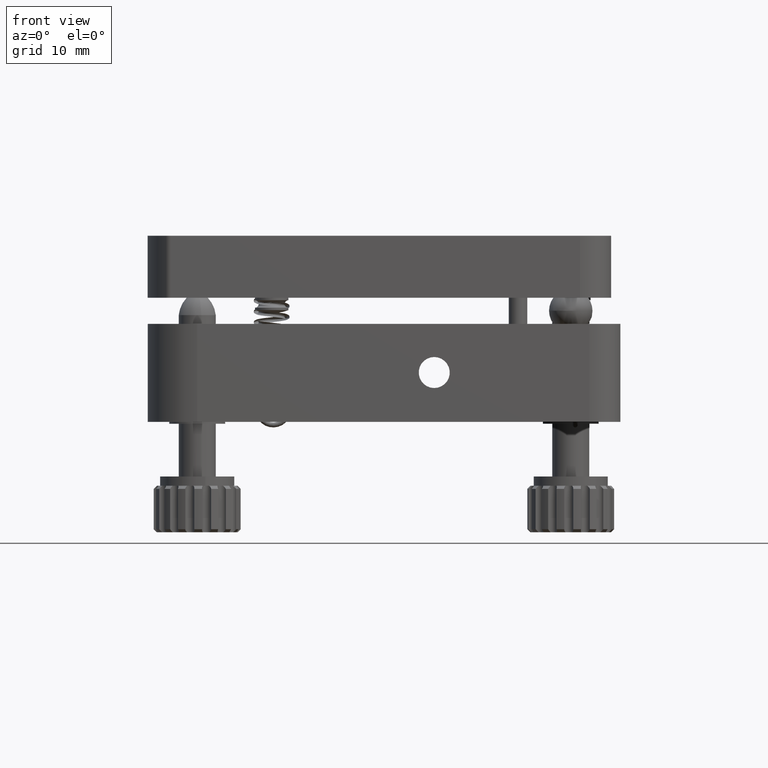
[diagram: clean part render]
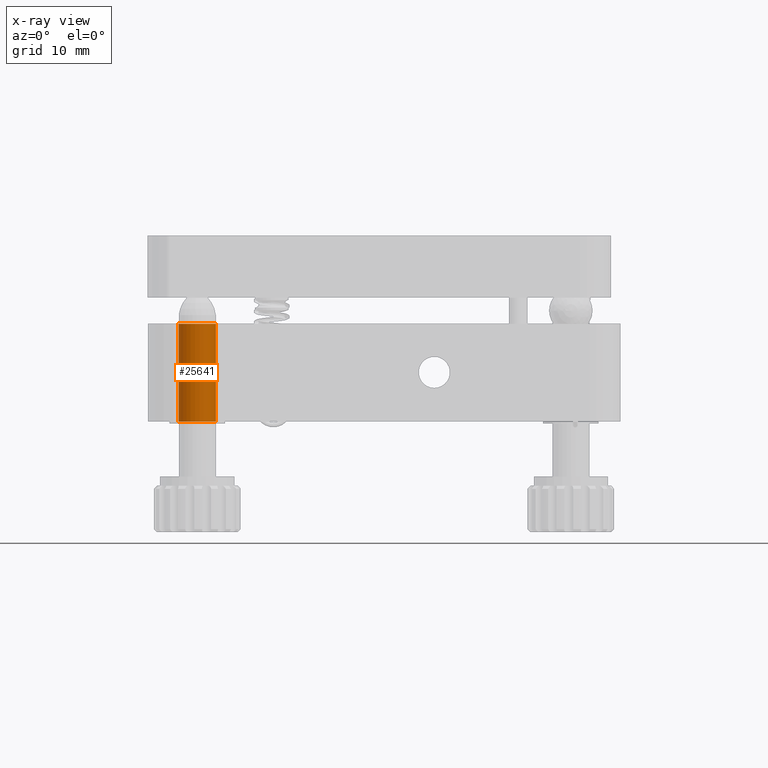
[diagram: x-ray — body ghosted, one internal face saturated and labeled with its STEP entity id]
A machine part, front view, then the same camera in x-ray: the body is ghosted and one INTERNAL B-rep face — a face not visible from any outside direction — is saturated and labeled: STEP entity #25641.
In plain terms, the highlighted cylindrical surface (edge-blend (fillet) strip) has radius 3 mm, axis along (-0, -0, -1).
Its self-contained STEP definition (entity closure, byte-faithful):
#67 = CARTESIAN_POINT ( 'NONE',  ( -42.36030118957224700, -11.04496330042993100, 42.20000000000001700 ) ) ;
#263 = VECTOR ( 'NONE', #20507, 1000.000000000000000 ) ;
#1053 = VERTEX_POINT ( 'NONE', #17217 ) ;
#1343 = ORIENTED_EDGE ( 'NONE', *, *, #3774, .T. ) ;
#2013 = CARTESIAN_POINT ( 'NONE',  ( -45.36030118957226200, -11.04496330042993100, 42.20000000000001700 ) ) ;
#2203 = ORIENTED_EDGE ( 'NONE', *, *, #8290, .T. ) ;
#2803 = LINE ( 'NONE', #31728, #22451 ) ;
#3313 = EDGE_LOOP ( 'NONE', ( #7628, #1343, #2203, #25228 ) ) ;
#3774 = EDGE_CURVE ( 'NONE', #18014, #7208, #2803, .T. ) ;
#4665 = FACE_OUTER_BOUND ( 'NONE', #3313, .T. ) ;
#5565 = AXIS2_PLACEMENT_3D ( 'NONE', #32740, #14064, #31258 ) ;
#7208 = VERTEX_POINT ( 'NONE', #32141 ) ;
#7355 = CARTESIAN_POINT ( 'NONE',  ( -48.36030118957226900, -11.04496330042993100, 42.20000000000001700 ) ) ;
#7628 = ORIENTED_EDGE ( 'NONE', *, *, #17095, .F. ) ;
#8290 = EDGE_CURVE ( 'NONE', #7208, #25393, #26163, .T. ) ;
#11721 = DIRECTION ( 'NONE',  ( -0.0000000000000000000, -0.0000000000000000000, -1.000000000000000000 ) ) ;
#14064 = DIRECTION ( 'NONE',  ( 0.0000000000000000000, 0.0000000000000000000, -1.000000000000000000 ) ) ;
#14072 = DIRECTION ( 'NONE',  ( 0.0000000000000000000, 0.0000000000000000000, -1.000000000000000000 ) ) ;
#14484 = EDGE_CURVE ( 'NONE', #1053, #25393, #20722, .T. ) ;
#17095 = EDGE_CURVE ( 'NONE', #18014, #1053, #34138, .T. ) ;
#17217 = CARTESIAN_POINT ( 'NONE',  ( -48.36030118957226900, -11.04496330042993100, 42.20000000000001700 ) ) ;
#18014 = VERTEX_POINT ( 'NONE', #67 ) ;
#20507 = DIRECTION ( 'NONE',  ( -0.0000000000000000000, -0.0000000000000000000, -1.000000000000000000 ) ) ;
#20676 = DIRECTION ( 'NONE',  ( -0.0000000000000000000, -0.0000000000000000000, -1.000000000000000000 ) ) ;
#20722 = LINE ( 'NONE', #7355, #263 ) ;
#22293 = AXIS2_PLACEMENT_3D ( 'NONE', #30196, #14072, #32860 ) ;
#22451 = VECTOR ( 'NONE', #11721, 1000.000000000000000 ) ;
#22614 = CYLINDRICAL_SURFACE ( 'NONE', #33642, 3.000000000000009800 ) ;
#25228 = ORIENTED_EDGE ( 'NONE', *, *, #14484, .F. ) ;
#25393 = VERTEX_POINT ( 'NONE', #33357 ) ;
#25641 = ADVANCED_FACE ( 'NONE', ( #4665 ), #22614, .F. ) ;
#26163 = CIRCLE ( 'NONE', #5565, 3.000000000000009800 ) ;
#30196 = CARTESIAN_POINT ( 'NONE',  ( -45.36030118957226200, -11.04496330042993100, 42.20000000000001700 ) ) ;
#31258 = DIRECTION ( 'NONE',  ( -1.000000000000000000, 0.0000000000000000000, 0.0000000000000000000 ) ) ;
#31604 = DIRECTION ( 'NONE',  ( -1.000000000000000000, 0.0000000000000000000, 0.0000000000000000000 ) ) ;
#31728 = CARTESIAN_POINT ( 'NONE',  ( -42.36030118957224700, -11.04496330042993100, 42.20000000000001700 ) ) ;
#32141 = CARTESIAN_POINT ( 'NONE',  ( -42.36030118957224700, -11.04496330042993100, 26.40000000000001300 ) ) ;
#32740 = CARTESIAN_POINT ( 'NONE',  ( -45.36030118957226200, -11.04496330042993100, 26.40000000000001300 ) ) ;
#32860 = DIRECTION ( 'NONE',  ( -1.000000000000000000, 0.0000000000000000000, 0.0000000000000000000 ) ) ;
#33357 = CARTESIAN_POINT ( 'NONE',  ( -48.36030118957226900, -11.04496330042993100, 26.40000000000001300 ) ) ;
#33642 = AXIS2_PLACEMENT_3D ( 'NONE', #2013, #20676, #31604 ) ;
#34138 = CIRCLE ( 'NONE', #22293, 3.000000000000009800 ) ;